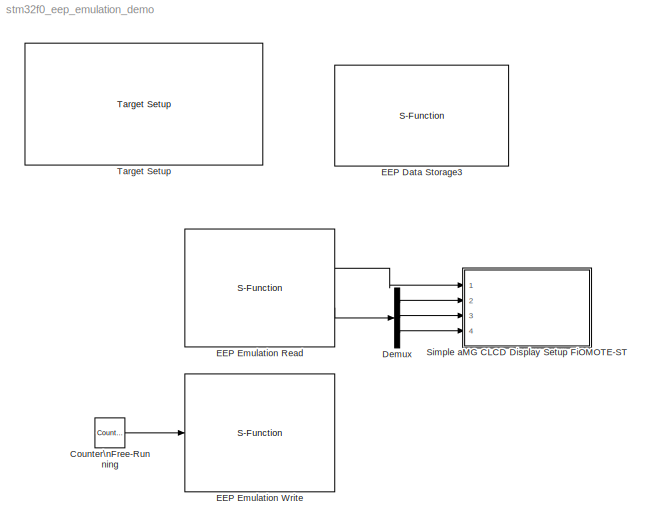
MODEL stm32f0_eep_emulation_demo
KIND model
CONFIG PreLoadFcn = waijung.modelPreload; % Required for working with Waijung Blockset. Do not remove.
BLOCK [Reference] Counter\nFree-Running  REF=simulink/Sources/Counter\nFree-Running
  FunctionWithSeparateData = off
  NumBits = 16
  Ports = [0, 1]
  RTWMemSecDataConstants = Inherit from model
  RTWMemSecDataInternal = Inherit from model
  RTWMemSecDataParameters = Inherit from model
  RTWMemSecFuncExecute = Inherit from model
  RTWMemSecFuncInitTerm = Inherit from model
  ShowPortLabels = FromPortIcon
  SourceBlock = simulink/Sources/Counter\nFree-Running
  SourceType = Counter Free-Running
  SystemSampleTime = -1
  tsamp = -1
BLOCK [Demux] Demux
  DisplayOption = bar
  Outputs = 3
  Ports = [1, 3]
BLOCK [S-Function] EEP Data Storage3
  EnableBusSupport = off
  FunctionName = stm32f0_eep_emulation
  MaskCallbackString = stm32f0_eep_emulation_callback('conf');||stm32f0_eep_emulation_callback('storagedefinename');||stm32f0_eep_emulation_callback('varname');|||stm32f0_eep_emulation_callback('eepfilename');||stm32f0_eep_emulation_callback('sampletime');|stm32f0_eep_emulation_callback('enablecustomportlabel');|stm32f0_eep_emulation_callback('conf');|stm32f0_eep_emulation_callback('conf');||stm32f0_eep_emulation_callba...<+22ch>
  MaskDisplay = text(0.5, 0.5, '[EEP Setup]\\nName: s\\nType: uint8','ver','middle','hor','center');
  MaskEnableString = on,on,on,on,on,on,on,on,on,on,on,on,on,on,off,on,on,on,on,on,on,on,on
  MaskHelp = web(fullfile(waijungdocroot,'stm32f0_eep_emulation.htm'), '-browser')
  MaskIconFrame = on
  MaskIconOpaque = on
  MaskIconRotate = none
  MaskIconUnits = normalized
  MaskInitialization = stm32f0_eep_emulation_callback('init');
  MaskPortRotate = default
  MaskPromptString = Configuration|Storage type|Storage name|Storage name|Var name (hidden)|Initial value|Storage name index (hidden)|EEP file name (hidden)|EEP Information (hidden), [name, initialvalue, datatype]|Sample time (sec)|Enable custom port labels (Ex. In1, In2, In3)|Custom input port labels (Ex. In1, In2, In3)|Custom output port labels (Ex. Out1, Out2, Out3)|Port Pin String|Block ID|Input Port Type|Input Po...<+148ch>
  MaskSelfModifiable = on
  MaskStyleString = popup(Setup|Read|Write),popup(double|single|int8|uint8|int16|uint16|int32|uint32),edit,popup(<empty>),edit,edit,edit,edit,edit,edit,checkbox,edit,edit,edit,edit,edit,edit,edit,edit,edit,edit,edit,edit
  MaskTabNameString = ,,,,,,,,,,,,,,,,,,,,,,
  MaskToolTipString = on,on,on,on,on,on,on,on,on,on,on,on,on,on,on,on,on,on,on,on,on,on,on
  MaskTunableValueString = off,off,off,off,off,off,off,off,off,off,off,off,off,off,off,off,off,off,off,off,off,off,off
  MaskType = stm32f0_eep_emulation
  MaskValueString = Setup|uint8|'s'|<empty>|'<empty>'|8|-1|'stm32f0_eep_emulation_demo.eeprom'|''|inf|off|0||0|EEPDataStorage3|[]|[]|{}|[]|[]|{}|0|[]
  MaskVarAliasString = ,,,,,,,,,,,,,,,,,,,,,,
  MaskVariables = conf=&1;datatype=&2;storagedefinename=@3;storagename=&4;varname=@5;initialvalue=@6;storageindex=@7;eepfilename=@8;eepinfo=@9;sampletime=@10;enablecustomportlabel=@11;cinputportlabel=&12;coutputportlabel=&13;portpinstr=&14;blockid=&15;inputporttype=@16;inputportwidth=@17;inputportlabel=&18;outputporttype=@19;outputportwidth=@20;outputportlabel=&21;compat=&22;optionstring=&23;
  MaskVisibilityString = off,on,on,off,off,on,off,off,off,on,off,off,off,off,off,off,off,off,off,off,off,off,off
  Parameters = conf,inputporttype,inputportwidth,outputporttype,outputportwidth,eepfilename,eepinfo,varname,optionstring,sampletime,blockid
  Ports = []
BLOCK [S-Function] EEP Emulation Read
  EnableBusSupport = off
  FunctionName = stm32f0_eep_emulation
  MaskCallbackString = stm32f0_eep_emulation_callback('conf');||stm32f0_eep_emulation_callback('storagedefinename');||stm32f0_eep_emulation_callback('varname');|||stm32f0_eep_emulation_callback('eepfilename');||stm32f0_eep_emulation_callback('debuginfo');|stm32f0_eep_emulation_callback('sampletime');|stm32f0_eep_emulation_callback('enablecustomportlabel');|stm32f0_eep_emulation_callback('conf');|stm32f0_eep_emulation_ca...<+67ch>
  MaskDescription = Read a value from EEProm Emulation of the specified variable anme.
  MaskDisplay = text(0.5, 0.5, '[EEP Read]\\nName: s\\nTs (sec): 0.01','ver','middle','hor','center'); port_label('output', 1,'s'); port_label('output', 2,'Debug');
  MaskEnableString = on,on,on,on,on,on,on,on,on,on,on,on,on,on,on,off,on,on,on,on,on,on,on,on
  MaskHelp = web(fullfile(waijungdocroot,'stm32f0_eep_emulation.htm'), '-browser')
  MaskIconFrame = on
  MaskIconOpaque = on
  MaskIconRotate = none
  MaskIconUnits = normalized
  MaskInitialization = stm32f0_eep_emulation_callback('init');
  MaskPortRotate = default
  MaskPromptString = Configuration|Storage type|Storage name|Storage name|Var name (hidden)|Initial value|Storage name index (hidden)|EEP file name (hidden)|EEP Information (hidden), [name, initialvalue, datatype]|Debug information|Sample time (sec)|Enable custom port labels (Ex. In1, In2, In3)|Custom input port labels (Ex. In1, In2, In3)|Custom output port labels (Ex. Out1, Out2, Out3)|Port Pin String|Block ID|Input ...<+166ch>
  MaskSelfModifiable = on
  MaskStyleString = popup(Setup|Read|Write),popup(double|single|int8|uint8|int16|uint16|int32|uint32),edit,popup(s),edit,edit,edit,edit,edit,checkbox,edit,checkbox,edit,edit,edit,edit,edit,edit,edit,edit,edit,edit,edit,edit
  MaskTabNameString = ,,,,,,,,,,,,,,,,,,,,,,,
  MaskToolTipString = on,on,on,on,on,on,on,on,on,on,on,on,on,on,on,on,on,on,on,on,on,on,on,on
  MaskTunableValueString = off,off,off,off,off,off,off,off,off,off,off,off,off,off,off,off,off,off,off,off,off,off,off,off
  MaskType = stm32f0_eep_emulation
  MaskValueString = Read|single|'Data1,Data2'|s|'s'|[1.0 2.0]|0|'stm32f0_eep_emulation_demo.eeprom'|'s,3,8,-'|on|inf|off|0||0|EEPEmulationRead|[]|[]|{}|[3 6]|[1 3]|{'s','Debug'}|0|[\"s\",\"0\",\"3\",\"on\",\"\",\"\",\"\",\"\",\"\",\"\",\"2\",\"s\",\"3\",\"8\",\"dummy\",\"0\",\"0\"]
  MaskVarAliasString = ,,,,,,,,,,,,,,,,,,,,,,,
  MaskVariables = conf=&1;datatype=&2;storagedefinename=@3;storagename=&4;varname=@5;initialvalue=@6;storageindex=@7;eepfilename=@8;eepinfo=@9;debuginfo=&10;sampletime=@11;enablecustomportlabel=@12;cinputportlabel=&13;coutputportlabel=&14;portpinstr=&15;blockid=&16;inputporttype=@17;inputportwidth=@18;inputportlabel=&19;outputporttype=@20;outputportwidth=@21;outputportlabel=&22;compat=&23;optionstring=&24;
  MaskVisibilityString = off,off,off,on,off,off,off,off,off,on,on,off,off,off,off,off,off,off,off,off,off,off,off,off
  Parameters = conf,inputporttype,inputportwidth,outputporttype,outputportwidth,eepfilename,eepinfo,varname,optionstring,sampletime,blockid
  Ports = [0, 2]
BLOCK [S-Function] EEP Emulation Write
  EnableBusSupport = off
  FunctionName = stm32f0_eep_emulation
  MaskCallbackString = stm32f0_eep_emulation_callback('conf');||stm32f0_eep_emulation_callback('storagedefinename');||stm32f0_eep_emulation_callback('varname');|||stm32f0_eep_emulation_callback('eepfilename');||stm32f0_eep_emulation_callback('debuginfo');|stm32f0_eep_emulation_callback('sampletime');|stm32f0_eep_emulation_callback('enablecustomportlabel');|stm32f0_eep_emulation_callback('conf');|stm32f0_eep_emulation_ca...<+67ch>
  MaskDescription = Write data value to the specified variable name, to store in EEProm Emulation.
  MaskDisplay = text(0.5, 0.5, '[EEP Write]\\nName: s\\nTs (sec): 0.01','ver','middle','hor','center'); port_label('input', 1,'s');
  MaskEnableString = on,on,on,on,on,on,on,on,on,on,on,on,on,on,on,off,on,on,on,on,on,on,on,on
  MaskHelp = web(fullfile(waijungdocroot,'stm32f0_eep_emulation.htm'), '-browser')
  MaskIconFrame = on
  MaskIconOpaque = on
  MaskIconRotate = none
  MaskIconUnits = normalized
  MaskInitialization = stm32f0_eep_emulation_callback('init');
  MaskPortRotate = default
  MaskPromptString = Configuration|Storage type|Storage name|Storage name|Var name (hidden)|Initial value|Storage name index (hidden)|EEP file name (hidden)|EEP Information (hidden), [name, initialvalue, datatype]|Debug information|Sample time (sec)|Enable custom port labels (Ex. In1, In2, In3)|Custom input port labels (Ex. In1, In2, In3)|Custom output port labels (Ex. Out1, Out2, Out3)|Port Pin String|Block ID|Input ...<+166ch>
  MaskSelfModifiable = on
  MaskStyleString = popup(Setup|Read|Write),popup(double|single|int8|uint8|int16|uint16|int32|uint32),edit,popup(s),edit,edit,edit,edit,edit,checkbox,edit,checkbox,edit,edit,edit,edit,edit,edit,edit,edit,edit,edit,edit,edit
  MaskTabNameString = ,,,,,,,,,,,,,,,,,,,,,,,
  MaskToolTipString = on,on,on,on,on,on,on,on,on,on,on,on,on,on,on,on,on,on,on,on,on,on,on,on
  MaskTunableValueString = off,off,off,off,off,off,off,off,off,off,off,off,off,off,off,off,off,off,off,off,off,off,off,off
  MaskType = stm32f0_eep_emulation
  MaskValueString = Write|single|'Data1,Data2'|s|'s'|[1.0 2.0]|0|'stm32f0_eep_emulation_demo.eeprom'|'s,3,8,-'|off|inf|off|0||0|EEPEmulationWrite|[-1]|[]|{'s'}|[]|[]|{}|0|[\"s\",\"0\",\"3\",\"off\",\"\",\"\",\"\",\"\",\"\",\"\",\"2\",\"s\",\"3\",\"8\",\"dummy\",\"0\",\"0\"]
  MaskVarAliasString = ,,,,,,,,,,,,,,,,,,,,,,,
  MaskVariables = conf=&1;datatype=&2;storagedefinename=@3;storagename=&4;varname=@5;initialvalue=@6;storageindex=@7;eepfilename=@8;eepinfo=@9;debuginfo=&10;sampletime=@11;enablecustomportlabel=@12;cinputportlabel=&13;coutputportlabel=&14;portpinstr=&15;blockid=&16;inputporttype=@17;inputportwidth=@18;inputportlabel=&19;outputporttype=@20;outputportwidth=@21;outputportlabel=&22;compat=&23;optionstring=&24;
  MaskVisibilityString = off,off,off,on,off,off,off,off,off,on,on,off,off,off,off,off,off,off,off,off,off,off,off,off
  Parameters = conf,inputporttype,inputportwidth,outputporttype,outputportwidth,eepfilename,eepinfo,varname,optionstring,sampletime,blockid
  Ports = [1]
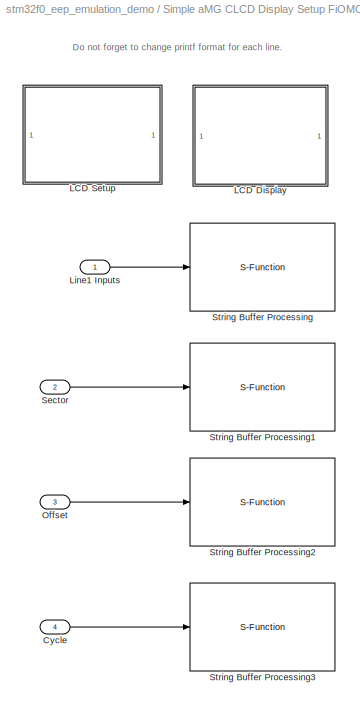
BLOCK [SubSystem] Simple aMG CLCD Display Setup FiOMOTE-ST
  CopyFcn = set_param(gcbh, 'LinkStatus', 'none')
  FunctionWithSeparateData = off
  MaskHideContents = off
  MinAlgLoopOccurrences = off
  Opaque = off
  Ports = [4]
  PropExecContextOutsideSubsystem = off
  RTWSystemCode = Auto
  RequestExecContextInheritance = off
BLOCK [Inport] Simple aMG CLCD Display Setup FiOMOTE-ST/Cycle
  IconDisplay = Port number
  OutDataType = fixdt(1, 16)
  OutScaling = 2^0
  Port = 4
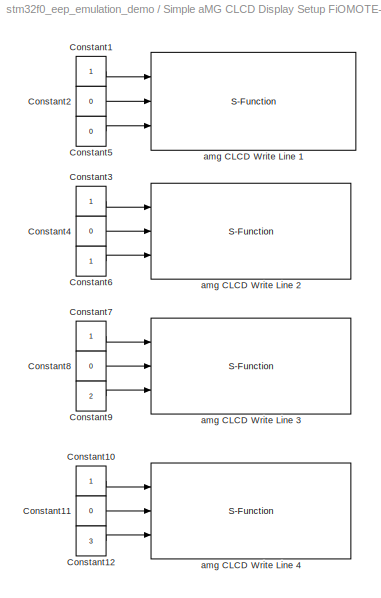
BLOCK [SubSystem] Simple aMG CLCD Display Setup FiOMOTE-ST/LCD Display
  FunctionWithSeparateData = off
  MaskHideContents = off
  MinAlgLoopOccurrences = off
  Opaque = off
  Ports = []
  PropExecContextOutsideSubsystem = off
  RTWSystemCode = Auto
  RequestExecContextInheritance = off
BLOCK [Constant] Simple aMG CLCD Display Setup FiOMOTE-ST/LCD Display/Constant1
  OutDataType = fixdt(1, 16)
  OutDataTypeMode = uint8
  OutDataTypeStr = uint8
  OutScaling = 2^0
BLOCK [Constant] Simple aMG CLCD Display Setup FiOMOTE-ST/LCD Display/Constant10
  OutDataType = fixdt(1, 16)
  OutDataTypeMode = uint8
  OutDataTypeStr = uint8
  OutScaling = 2^0
BLOCK [Constant] Simple aMG CLCD Display Setup FiOMOTE-ST/LCD Display/Constant11
  OutDataType = fixdt(1, 16)
  OutDataTypeMode = uint8
  OutDataTypeStr = uint8
  OutScaling = 2^0
  Value = 0
BLOCK [Constant] Simple aMG CLCD Display Setup FiOMOTE-ST/LCD Display/Constant12
  OutDataType = fixdt(1, 16)
  OutDataTypeMode = uint8
  OutDataTypeStr = uint8
  OutScaling = 2^0
  Value = 3
BLOCK [Constant] Simple aMG CLCD Display Setup FiOMOTE-ST/LCD Display/Constant2
  OutDataType = fixdt(1, 16)
  OutDataTypeMode = uint8
  OutDataTypeStr = uint8
  OutScaling = 2^0
  Value = 0
BLOCK [Constant] Simple aMG CLCD Display Setup FiOMOTE-ST/LCD Display/Constant3
  OutDataType = fixdt(1, 16)
  OutDataTypeMode = uint8
  OutDataTypeStr = uint8
  OutScaling = 2^0
BLOCK [Constant] Simple aMG CLCD Display Setup FiOMOTE-ST/LCD Display/Constant4
  OutDataType = fixdt(1, 16)
  OutDataTypeMode = uint8
  OutDataTypeStr = uint8
  OutScaling = 2^0
  Value = 0
BLOCK [Constant] Simple aMG CLCD Display Setup FiOMOTE-ST/LCD Display/Constant5
  OutDataType = fixdt(1, 16)
  OutDataTypeMode = uint8
  OutDataTypeStr = uint8
  OutScaling = 2^0
  Value = 0
BLOCK [Constant] Simple aMG CLCD Display Setup FiOMOTE-ST/LCD Display/Constant6
  OutDataType = fixdt(1, 16)
  OutDataTypeMode = uint8
  OutDataTypeStr = uint8
  OutScaling = 2^0
BLOCK [Constant] Simple aMG CLCD Display Setup FiOMOTE-ST/LCD Display/Constant7
  OutDataType = fixdt(1, 16)
  OutDataTypeMode = uint8
  OutDataTypeStr = uint8
  OutScaling = 2^0
BLOCK [Constant] Simple aMG CLCD Display Setup FiOMOTE-ST/LCD Display/Constant8
  OutDataType = fixdt(1, 16)
  OutDataTypeMode = uint8
  OutDataTypeStr = uint8
  OutScaling = 2^0
  Value = 0
BLOCK [Constant] Simple aMG CLCD Display Setup FiOMOTE-ST/LCD Display/Constant9
  OutDataType = fixdt(1, 16)
  OutDataTypeMode = uint8
  OutDataTypeStr = uint8
  OutScaling = 2^0
  Value = 2
BLOCK [S-Function] Simple aMG CLCD Display Setup FiOMOTE-ST/LCD Display/amg CLCD Write Line 1
  EnableBusSupport = off
  FunctionName = amg_clcd
  MaskCallbackString = amg_clcd_callback('configuration');||||||||||||||||amg_clcd_callback('usestringbuffer');||amg_clcd_callback('varname');|||amg_clcd_callback('confstr');|amg_clcd_callback('sampletime');|amg_clcd_callback('sampletimestr');|amg_clcd_callback('blockid');  <repeated x5 — deduplicated; at blocks: amg CLCD Write Line 1, amg CLCD Write Line 2, amg CLCD Write Line 3, amg CLCD Write Line 4, amg CLCD Setup>
  MaskDescription = Note for cmd:\n1 - Clear LCD Line before write.\n0 or otherwise - Write into LCD Line with existing data.\n
  MaskDisplay = text(0.5, 0.5, 'Module: CLCD1 (Write)\\nBuffer: Line1\\nTs (sec): 0.05','ver','middle','hor','center');port_label('input', 1,'cmd');port_label('input', 2,'xpos');port_label('input', 3,'ypos');
  MaskEnableString = on,on,on,off,off,on,on,on,on,on,on,on,on,on,on,on,on,on,off,off,off,on,on,on,on
  MaskHelp = web(fullfile(waijungdocroot,'amg_clcd_write.htm'), '-browser')
  MaskIconFrame = on
  MaskIconOpaque = on
  MaskIconRotate = none
  MaskIconUnits = normalized
  MaskInitialization = amg_clcd_callback('init');
  MaskPortRotate = default
  MaskPromptString = Configuration:|Module:|LCD model:|Interface:|Number of lines:|Number of columns:|GPIO Pull-Up/Down:|GPIO control port:|GPIO control pin, RS:|GPIO control pin, EN:|GPIO control pin, RW:|GPIO data D[7:4] port|GPIO data pin, D4:|GPIO data pin, D5:|GPIO data pin, D6:|GPIO data pin, D7:|Use string buffer|String buffer|Variable name|Input type array|Output type array|Configuration string|Sample time (se...<+47ch>  <repeated x4 — deduplicated; at blocks: amg CLCD Write Line 1, amg CLCD Write Line 2, amg CLCD Write Line 3, amg CLCD Write Line 4>
  MaskSelfModifiable = on
  MaskStyleString = popup(Setup|Transaction),popup(1|2|3|4),popup(amg CLCD Std),popup(4-bits),edit,edit,popup(Push-pull|Open-drain),popup(A|B|C|D|E|F|G|H|I),popup(0|1|2|3|4|5|6|7|8|9|10|11|12|13|14|15),popup(0|1|2|3|4|5|6|7|8|9|10|11|12|13|14|15),popup(0|1|2|3|4|5|6|7|8|9|10|11|12|13|14|15),popup(A|B|C|D|E|F|G|H|I),popup(0|1|2|3|4|5|6|7|8|9|10|11|12|13|14|15),popup(0|1|2|3|4|5|6|7|8|9|10|11|12|13|14|15),popup(0|1|2|3...<+151ch>  <repeated x5 — deduplicated; at blocks: amg CLCD Write Line 1, amg CLCD Write Line 2, amg CLCD Write Line 3, amg CLCD Write Line 4, amg CLCD Setup>
  MaskTabNameString = ,,,,,,,,,,,,,,,,,,,,,,,,
  MaskToolTipString = on,on,on,on,on,on,on,on,on,on,on,on,on,on,on,on,on,on,on,on,on,on,on,on,on
  MaskTunableValueString = off,off,off,off,off,off,off,off,off,off,off,off,off,off,off,off,off,off,off,off,off,off,off,off,off
  MaskType = amg_clcd
  MaskValueString = Transaction|1|amg CLCD Std|4-bits|4|20|Push-pull|E|15|11|13|A|7|5|3|1|on|Line1|SimpleaMGCLCDDisplaySetupFiOMOTESTLCDSetupVolatileDataStorage_Line1|[3 -1 -1 -1]|[0]|[\"4\",\"4\",\"20\",\"PP\",\"E\",\"15\",\"11\",\"13\",\"\",\"A\",\"\",\"\",\"\",\"\",\"7\",\"5\",\"3\",\"1\",\"1\",\"SimpleaMGCLCDDisplaySetupFiOMOTESTLCDSetupVolatileDataStorage_Line1\",\"1\",\"0\",\"0\",\"0\",\"1\",\"0\",\"0\",\"0\",\...<+89ch>
  MaskVarAliasString = ,,,,,,,,,,,,,,,,,,,,,,,,
  MaskVariables = configuration=&1;module=&2;model=&3;interface=&4;linecount=@5;columncount=@6;gpiotype=&7;controlport=&8;control_rs=&9;control_en=&10;control_rw=&11;dataport=&12;data0=&13;data1=&14;data2=&15;data3=&16;usestringbuffer=@17;stringbuffer=&18;varname=&19;inputtypearray=@20;outputtypearray=@21;confstr=&22;sampletime=@23;sampletimestr=&24;blockid=&25;  <repeated x4 — deduplicated; at blocks: amg CLCD Write Line 1, amg CLCD Write Line 2, amg CLCD Write Line 3, amg CLCD Write Line 4>
  MaskVisibilityString = off,on,off,off,off,off,off,off,off,off,off,off,off,off,off,off,on,on,off,off,off,off,on,off,off
  Parameters = module,configuration,inputtypearray,outputtypearray,confstr,sampletime,sampletimestr,blockid
  Ports = [3]
BLOCK [S-Function] Simple aMG CLCD Display Setup FiOMOTE-ST/LCD Display/amg CLCD Write Line 2
  EnableBusSupport = off
  FunctionName = amg_clcd
  MaskDescription = Note for cmd:\n1 - Clear LCD Line before write.\n0 or otherwise - Write into LCD Line with existing data.\n
  MaskDisplay = text(0.5, 0.5, 'Module: CLCD1 (Write)\\nBuffer: Line2\\nTs (sec): 0.05','ver','middle','hor','center');port_label('input', 1,'cmd');port_label('input', 2,'xpos');port_label('input', 3,'ypos');
  MaskEnableString = on,on,on,off,off,on,on,on,on,on,on,on,on,on,on,on,on,on,off,off,off,on,on,on,on
  MaskHelp = web(fullfile(waijungdocroot,'amg_clcd_write.htm'), '-browser')
  MaskIconFrame = on
  MaskIconOpaque = on
  MaskIconRotate = none
  MaskIconUnits = normalized
  MaskInitialization = amg_clcd_callback('init');
  MaskPortRotate = default
  MaskSelfModifiable = on
  MaskTabNameString = ,,,,,,,,,,,,,,,,,,,,,,,,
  MaskToolTipString = on,on,on,on,on,on,on,on,on,on,on,on,on,on,on,on,on,on,on,on,on,on,on,on,on
  MaskTunableValueString = off,off,off,off,off,off,off,off,off,off,off,off,off,off,off,off,off,off,off,off,off,off,off,off,off
  MaskType = amg_clcd
  MaskValueString = Transaction|1|amg CLCD Std|4-bits|4|20|Push-pull|E|15|11|13|A|7|5|3|1|on|Line2|SimpleaMGCLCDDisplaySetupFiOMOTESTLCDSetupVolatileDataStorage1_Line2|[3 -1 -1 -1]|[0]|[\"4\",\"4\",\"20\",\"PP\",\"E\",\"15\",\"11\",\"13\",\"\",\"A\",\"\",\"\",\"\",\"\",\"7\",\"5\",\"3\",\"1\",\"1\",\"SimpleaMGCLCDDisplaySetupFiOMOTESTLCDSetupVolatileDataStorage1_Line2\",\"1\",\"0\",\"0\",\"0\",\"1\",\"0\",\"0\",\"0\"...<+91ch>
  MaskVarAliasString = ,,,,,,,,,,,,,,,,,,,,,,,,
  MaskVisibilityString = off,on,off,off,off,off,off,off,off,off,off,off,off,off,off,off,on,on,off,off,off,off,on,off,off
  Parameters = module,configuration,inputtypearray,outputtypearray,confstr,sampletime,sampletimestr,blockid
  Ports = [3]
BLOCK [S-Function] Simple aMG CLCD Display Setup FiOMOTE-ST/LCD Display/amg CLCD Write Line 3
  EnableBusSupport = off
  FunctionName = amg_clcd
  MaskDescription = Note for cmd:\n1 - Clear LCD Line before write.\n0 or otherwise - Write into LCD Line with existing data.\n
  MaskDisplay = text(0.5, 0.5, 'Module: CLCD1 (Write)\\nBuffer: Line3\\nTs (sec): 0.05','ver','middle','hor','center');port_label('input', 1,'cmd');port_label('input', 2,'xpos');port_label('input', 3,'ypos');
  MaskEnableString = on,on,on,off,off,on,on,on,on,on,on,on,on,on,on,on,on,on,off,off,off,on,on,on,on
  MaskHelp = web(fullfile(waijungdocroot,'amg_clcd_write.htm'), '-browser')
  MaskIconFrame = on
  MaskIconOpaque = on
  MaskIconRotate = none
  MaskIconUnits = normalized
  MaskInitialization = amg_clcd_callback('init');
  MaskPortRotate = default
  MaskSelfModifiable = on
  MaskTabNameString = ,,,,,,,,,,,,,,,,,,,,,,,,
  MaskToolTipString = on,on,on,on,on,on,on,on,on,on,on,on,on,on,on,on,on,on,on,on,on,on,on,on,on
  MaskTunableValueString = off,off,off,off,off,off,off,off,off,off,off,off,off,off,off,off,off,off,off,off,off,off,off,off,off
  MaskType = amg_clcd
  MaskValueString = Transaction|1|amg CLCD Std|4-bits|4|20|Push-pull|E|15|11|13|A|7|5|3|1|on|Line3|SimpleaMGCLCDDisplaySetupFiOMOTESTLCDSetupVolatileDataStorage2_Line3|[3 -1 -1 -1]|[0]|[\"4\",\"4\",\"20\",\"PP\",\"E\",\"15\",\"11\",\"13\",\"\",\"A\",\"\",\"\",\"\",\"\",\"7\",\"5\",\"3\",\"1\",\"1\",\"SimpleaMGCLCDDisplaySetupFiOMOTESTLCDSetupVolatileDataStorage2_Line3\",\"1\",\"0\",\"0\",\"0\",\"1\",\"0\",\"0\",\"0\"...<+91ch>
  MaskVarAliasString = ,,,,,,,,,,,,,,,,,,,,,,,,
  MaskVisibilityString = off,on,off,off,off,off,off,off,off,off,off,off,off,off,off,off,on,on,off,off,off,off,on,off,off
  Parameters = module,configuration,inputtypearray,outputtypearray,confstr,sampletime,sampletimestr,blockid
  Ports = [3]
BLOCK [S-Function] Simple aMG CLCD Display Setup FiOMOTE-ST/LCD Display/amg CLCD Write Line 4
  EnableBusSupport = off
  FunctionName = amg_clcd
  MaskDescription = Note for cmd:\n1 - Clear LCD Line before write.\n0 or otherwise - Write into LCD Line with existing data.\n
  MaskDisplay = text(0.5, 0.5, 'Module: CLCD1 (Write)\\nBuffer: Line4\\nTs (sec): 0.05','ver','middle','hor','center');port_label('input', 1,'cmd');port_label('input', 2,'xpos');port_label('input', 3,'ypos');
  MaskEnableString = on,on,on,off,off,on,on,on,on,on,on,on,on,on,on,on,on,on,off,off,off,on,on,on,on
  MaskHelp = web(fullfile(waijungdocroot,'amg_clcd_write.htm'), '-browser')
  MaskIconFrame = on
  MaskIconOpaque = on
  MaskIconRotate = none
  MaskIconUnits = normalized
  MaskInitialization = amg_clcd_callback('init');
  MaskPortRotate = default
  MaskSelfModifiable = on
  MaskTabNameString = ,,,,,,,,,,,,,,,,,,,,,,,,
  MaskToolTipString = on,on,on,on,on,on,on,on,on,on,on,on,on,on,on,on,on,on,on,on,on,on,on,on,on
  MaskTunableValueString = off,off,off,off,off,off,off,off,off,off,off,off,off,off,off,off,off,off,off,off,off,off,off,off,off
  MaskType = amg_clcd
  MaskValueString = Transaction|1|amg CLCD Std|4-bits|4|20|Push-pull|E|15|11|13|A|7|5|3|1|on|Line4|SimpleaMGCLCDDisplaySetupFiOMOTESTLCDSetupVolatileDataStorage3_Line4|[3 -1 -1 -1]|[0]|[\"4\",\"4\",\"20\",\"PP\",\"E\",\"15\",\"11\",\"13\",\"\",\"A\",\"\",\"\",\"\",\"\",\"7\",\"5\",\"3\",\"1\",\"1\",\"SimpleaMGCLCDDisplaySetupFiOMOTESTLCDSetupVolatileDataStorage3_Line4\",\"1\",\"0\",\"0\",\"0\",\"1\",\"0\",\"0\",\"0\"...<+91ch>
  MaskVarAliasString = ,,,,,,,,,,,,,,,,,,,,,,,,
  MaskVisibilityString = off,on,off,off,off,off,off,off,off,off,off,off,off,off,off,off,on,on,off,off,off,off,on,off,off
  Parameters = module,configuration,inputtypearray,outputtypearray,confstr,sampletime,sampletimestr,blockid
  Ports = [3]
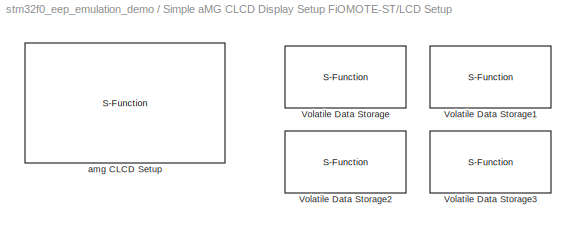
BLOCK [SubSystem] Simple aMG CLCD Display Setup FiOMOTE-ST/LCD Setup
  FunctionWithSeparateData = off
  MaskHideContents = off
  MinAlgLoopOccurrences = off
  Opaque = off
  Ports = []
  PropExecContextOutsideSubsystem = off
  RTWSystemCode = Auto
  RequestExecContextInheritance = off
BLOCK [S-Function] Simple aMG CLCD Display Setup FiOMOTE-ST/LCD Setup/Volatile Data Storage
  EnableBusSupport = off
  FunctionName = waijung_vdata_storage
  MaskCallbackString = waijung_vdata_storage_callback('storagetype');|waijung_vdata_storage_callback('storagename');|waijung_vdata_storage_callback('initval');|waijung_vdata_storage_callback('varname');||waijung_vdata_storage_callback('initvalstring');|waijung_vdata_storage_callback('webintegration');|waijung_vdata_storage_callback('weboutputformat');|||waijung_vdata_storage_callback('sampletime');|waijung_vdata_storage...<+71ch>  <repeated x4 — deduplicated; at blocks: Volatile Data Storage, Volatile Data Storage1, Volatile Data Storage2, Volatile Data Storage3>
  MaskDescription = This block implements a volatile Data Storage.\n\nWeb CGI varset/varget integratiopn:\nEnable - In webserver application, allow remote access via http.\nDisable - Variable is use in local only.  <repeated x4 — deduplicated; at blocks: Volatile Data Storage, Volatile Data Storage1, Volatile Data Storage2, Volatile Data Storage3>
  MaskDisplay = text(0.5, 0.5, 'Name: Line1\\nType: string','ver','middle','hor','center')
  MaskEnableString = on,on,on,off,on,on,on,on,off,on,on,off,off,on
  MaskHelp = web(fullfile(waijungdocroot,'Volatile_Data_Storage.htm'))
  MaskIconFrame = on
  MaskIconOpaque = on
  MaskIconRotate = none
  MaskIconUnits = normalized
  MaskInitialization = waijung_vdata_storage_callback('init');
  MaskPortRotate = default
  MaskPromptString = Storage Type|Storage Name (must be a valid variable name)|Initial value (Apply at Power on Reset only)|Variable name|Size (bytes)|Initial value (Apply at Power on Reset only)|Web CGI varget/varset integration|Web CGI varget output format|Web CGI varset callback|Last selected Storage Type|Sample time (sec)|Compiled sample time (sec) in string|BlockID|Type string  <repeated x4 — deduplicated; at blocks: Volatile Data Storage, Volatile Data Storage1, Volatile Data Storage2, Volatile Data Storage3>
  MaskSelfModifiable = on
  MaskStyleString = popup(double|single|uint32|int32|uint16|int16|uint8|int8|string),edit,edit,edit,edit,edit,popup(Disable|ReadOnly|Write/ Read|ReadOnly with KeyValuePair|Write/ Read with KeyValuePair),edit,edit,popup(double|single|uint32|int32|uint16|int16|uint8|int8|string),edit,edit,edit,edit  <repeated x4 — deduplicated; at blocks: Volatile Data Storage, Volatile Data Storage1, Volatile Data Storage2, Volatile Data Storage3>
  MaskTabNameString = ,,,,,,,,,,,,,
  MaskToolTipString = on,on,on,on,on,on,on,on,on,on,on,on,on,on
  MaskTunableValueString = off,off,off,off,off,off,off,off,off,off,off,off,off,off
  MaskType = waijung_vdata_storage
  MaskValueString = string|Line1|0|SimpleaMGCLCDDisplaySetupFiOMOTESTLCDSetupVolatileDataStorage_Line1|64|''|Disable|'%s'|(void*)0|string|-1|0.01|SimpleaMGCLCDDisplaySetupFiOMOTESTLCDSetupVolatileDataStorage|char
  MaskVarAliasString = ,,,,,,,,,,,,,
  MaskVariables = storagetype=&1;storagename=&2;initval=@3;varname=&4;buffersize=@5;initvalstring=@6;webintegration=&7;weboutputformat=&8;webcgicallback=&9;laststoragetype=&10;sampletime=@11;sampletimestr=&12;blockid=&13;storagetypestr=&14;  <repeated x4 — deduplicated; at blocks: Volatile Data Storage, Volatile Data Storage1, Volatile Data Storage2, Volatile Data Storage3>
  MaskVisibilityString = on,on,off,off,on,on,on,off,off,off,on,off,off,off
  Parameters = storagetype,storagename,initval,varname,buffersize,initvalstring,sampletime,sampletimestr,blockid,storagetypestr
  Ports = []
BLOCK [S-Function] Simple aMG CLCD Display Setup FiOMOTE-ST/LCD Setup/Volatile Data Storage1
  EnableBusSupport = off
  FunctionName = waijung_vdata_storage
  MaskDisplay = text(0.5, 0.5, 'Name: Line2\\nType: string','ver','middle','hor','center')
  MaskEnableString = on,on,on,off,on,on,on,on,off,on,on,off,off,on
  MaskHelp = web(fullfile(waijungdocroot,'Volatile_Data_Storage.htm'))
  MaskIconFrame = on
  MaskIconOpaque = on
  MaskIconRotate = none
  MaskIconUnits = normalized
  MaskInitialization = waijung_vdata_storage_callback('init');
  MaskPortRotate = default
  MaskSelfModifiable = on
  MaskTabNameString = ,,,,,,,,,,,,,
  MaskToolTipString = on,on,on,on,on,on,on,on,on,on,on,on,on,on
  MaskTunableValueString = off,off,off,off,off,off,off,off,off,off,off,off,off,off
  MaskType = waijung_vdata_storage
  MaskValueString = string|Line2|0|SimpleaMGCLCDDisplaySetupFiOMOTESTLCDSetupVolatileDataStorage1_Line2|64|''|Disable|'%s'|(void*)0|string|-1|0.01|SimpleaMGCLCDDisplaySetupFiOMOTESTLCDSetupVolatileDataStorage1|char
  MaskVarAliasString = ,,,,,,,,,,,,,
  MaskVisibilityString = on,on,off,off,on,on,on,off,off,off,on,off,off,off
  Parameters = storagetype,storagename,initval,varname,buffersize,initvalstring,sampletime,sampletimestr,blockid,storagetypestr
  Ports = []
BLOCK [S-Function] Simple aMG CLCD Display Setup FiOMOTE-ST/LCD Setup/Volatile Data Storage2
  EnableBusSupport = off
  FunctionName = waijung_vdata_storage
  MaskDisplay = text(0.5, 0.5, 'Name: Line3\\nType: string','ver','middle','hor','center')
  MaskEnableString = on,on,on,off,on,on,on,on,off,on,on,off,off,on
  MaskHelp = web(fullfile(waijungdocroot,'Volatile_Data_Storage.htm'))
  MaskIconFrame = on
  MaskIconOpaque = on
  MaskIconRotate = none
  MaskIconUnits = normalized
  MaskInitialization = waijung_vdata_storage_callback('init');
  MaskPortRotate = default
  MaskSelfModifiable = on
  MaskTabNameString = ,,,,,,,,,,,,,
  MaskToolTipString = on,on,on,on,on,on,on,on,on,on,on,on,on,on
  MaskTunableValueString = off,off,off,off,off,off,off,off,off,off,off,off,off,off
  MaskType = waijung_vdata_storage
  MaskValueString = string|Line3|0|SimpleaMGCLCDDisplaySetupFiOMOTESTLCDSetupVolatileDataStorage2_Line3|64|''|Disable|'%s'|(void*)0|string|-1|0.01|SimpleaMGCLCDDisplaySetupFiOMOTESTLCDSetupVolatileDataStorage2|char
  MaskVarAliasString = ,,,,,,,,,,,,,
  MaskVisibilityString = on,on,off,off,on,on,on,off,off,off,on,off,off,off
  Parameters = storagetype,storagename,initval,varname,buffersize,initvalstring,sampletime,sampletimestr,blockid,storagetypestr
  Ports = []
BLOCK [S-Function] Simple aMG CLCD Display Setup FiOMOTE-ST/LCD Setup/Volatile Data Storage3
  EnableBusSupport = off
  FunctionName = waijung_vdata_storage
  MaskDisplay = text(0.5, 0.5, 'Name: Line4\\nType: string','ver','middle','hor','center')
  MaskEnableString = on,on,on,off,on,on,on,on,off,on,on,off,off,on
  MaskHelp = web(fullfile(waijungdocroot,'Volatile_Data_Storage.htm'))
  MaskIconFrame = on
  MaskIconOpaque = on
  MaskIconRotate = none
  MaskIconUnits = normalized
  MaskInitialization = waijung_vdata_storage_callback('init');
  MaskPortRotate = default
  MaskSelfModifiable = on
  MaskTabNameString = ,,,,,,,,,,,,,
  MaskToolTipString = on,on,on,on,on,on,on,on,on,on,on,on,on,on
  MaskTunableValueString = off,off,off,off,off,off,off,off,off,off,off,off,off,off
  MaskType = waijung_vdata_storage
  MaskValueString = string|Line4|0|SimpleaMGCLCDDisplaySetupFiOMOTESTLCDSetupVolatileDataStorage3_Line4|64|''|Disable|'%s'|(void*)0|string|-1|0.01|SimpleaMGCLCDDisplaySetupFiOMOTESTLCDSetupVolatileDataStorage3|char
  MaskVarAliasString = ,,,,,,,,,,,,,
  MaskVisibilityString = on,on,off,off,on,on,on,off,off,off,on,off,off,off
  Parameters = storagetype,storagename,initval,varname,buffersize,initvalstring,sampletime,sampletimestr,blockid,storagetypestr
  Ports = []
BLOCK [S-Function] Simple aMG CLCD Display Setup FiOMOTE-ST/LCD Setup/amg CLCD Setup
  EnableBusSupport = off
  FunctionName = amg_clcd
  MaskDisplay = text(0.5, 0.5, 'Module: CLCD1 (Setup)\\nInterface: 4-bits\\nCntrl: B2/B10/B11\\nD[7:4]: B12/B13/B14/B15\\nTs (sec): 0.01','ver','middle','hor','center');
  MaskEnableString = on,on,on,off,off,on,on,on,on,on,on,on,on,on,on,on,on,on,off,off,off,on,on,on,on
  MaskHelp = web(fullfile(waijungdocroot,'amg_clcd_setup.htm'), '-browser')
  MaskIconFrame = on
  MaskIconOpaque = on
  MaskIconRotate = none
  MaskIconUnits = normalized
  MaskInitialization = amg_clcd_callback('init');
  MaskPortRotate = default
  MaskPromptString = Configuration:|Module:|LCD model:|Interface:|Number of lines:|Number of columns:|GPIO Pull-Up/Down:|GPIO control port:|GPIO control pin, RS:|GPIO control pin, RW:|GPIO control pin, EN:|GPIO data D[7:4] port|GPIO data pin, D4:|GPIO data pin, D5:|GPIO data pin, D6:|GPIO data pin, D7:|Use string buffer|String buffer|Variable name|Input type array|Output type array|Configuration string|Sample time (se...<+47ch>
  MaskSelfModifiable = on
  MaskTabNameString = ,,,,,,,,,,,,,,,,,,,,,,,,
  MaskToolTipString = on,on,on,on,on,on,on,on,on,on,on,on,on,on,on,on,on,on,on,on,on,on,on,on,on
  MaskTunableValueString = off,off,off,off,off,off,off,off,off,off,off,off,off,off,off,off,off,off,off,off,off,off,off,off,off
  MaskType = amg_clcd
  MaskValueString = Setup|1|amg CLCD Std|4-bits|4|16|Push-pull|B|2|10|11|B|12|13|14|15|off|Line2|clcd_demo_4linesLCDSetupVolatileDataStorage3_Line2|[0]|[0]|[\"4\",\"4\",\"16\",\"PP\",\"B\",\"2\",\"11\",\"10\",\"\",\"B\",\"\",\"\",\"\",\"\",\"12\",\"13\",\"14\",\"15\",\"0\",\"\",\"0\",\"1\",\"0\",\"0\",\"0\",\"0\",\"0\",\"0\",\"0\",\"stm32f0\"]|-1|0.01|SimpleaMGCLCDDisplaySetupFiOMOTESTLCDSetupamgCLCDSetup
  MaskVarAliasString = ,,,,,,,,,,,,,,,,,,,,,,,,
  MaskVariables = configuration=&1;module=&2;model=&3;interface=&4;linecount=@5;columncount=@6;gpiotype=&7;controlport=&8;control_rs=&9;control_rw=&10;control_en=&11;dataport=&12;data0=&13;data1=&14;data2=&15;data3=&16;usestringbuffer=@17;stringbuffer=&18;varname=&19;inputtypearray=@20;outputtypearray=@21;confstr=&22;sampletime=@23;sampletimestr=&24;blockid=&25;
  MaskVisibilityString = off,on,off,on,off,on,on,on,on,on,on,on,on,on,on,on,off,off,off,off,off,off,off,off,off
  Parameters = module,configuration,inputtypearray,outputtypearray,confstr,sampletime,sampletimestr,blockid
  Ports = []
BLOCK [Inport] Simple aMG CLCD Display Setup FiOMOTE-ST/Line1 Inputs
  IconDisplay = Port number
  OutDataType = fixdt(1, 16)
  OutScaling = 2^0
BLOCK [Inport] Simple aMG CLCD Display Setup FiOMOTE-ST/Offset
  IconDisplay = Port number
  OutDataType = fixdt(1, 16)
  OutScaling = 2^0
  Port = 3
BLOCK [Inport] Simple aMG CLCD Display Setup FiOMOTE-ST/Sector
  IconDisplay = Port number
  OutDataType = fixdt(1, 16)
  OutScaling = 2^0
  Port = 2
BLOCK [S-Function] Simple aMG CLCD Display Setup FiOMOTE-ST/String Buffer Processing
  EnableBusSupport = off
  FunctionName = waijung_stringbuffer_processing
  MaskCallbackString = waijung_stringbuffer_processing_callback('configuration');||waijung_stringbuffer_processing_callback('sformat');|waijung_stringbuffer_processing_callback('enableoutput');||||||waijung_stringbuffer_processing_callback('sampletime');|waijung_stringbuffer_processing_callback('sampletimestr');|waijung_stringbuffer_processing_callback('blockid');  <repeated x4 — deduplicated; at blocks: String Buffer Processing, String Buffer Processing1, String Buffer Processing2, String Buffer Processing3>
  MaskDescription = This block implements string processing, sprintf/ sscanf command.\nSupported format:\n%u, %i, %o, %x: uint32\n%d: int32\n%e, %g, %f: single\n%c: int8\n\nStatus:\n 0: Failed.\n Non-zero: Success.  <repeated x4 — deduplicated; at blocks: String Buffer Processing, String Buffer Processing1, String Buffer Processing2, String Buffer Processing3>
  MaskDisplay = text(0.5, 0.5, '[ sprintf ]\\nBuffer: Line1\\nTs (sec): 0.01','ver','middle','hor','center');port_label('input', 1,'%u');
  MaskEnableString = on,on,on,on,off,on,on,on,on,on,off,off
  MaskHelp = web(fullfile(waijungdocroot,'String_Buffer_Processing.htm'))
  MaskIconFrame = on
  MaskIconOpaque = on
  MaskIconRotate = none
  MaskIconUnits = normalized
  MaskInitialization = waijung_stringbuffer_processing_callback('init');
  MaskPortRotate = default
  MaskPromptString = Function|String buffer|Printf format|Enable output status|Variable name|Input type array|Output type array|Port type list|Port type count|Sample time (sec)|Compiled sample time (sec) in string|BlockID  <repeated x4 — deduplicated; at blocks: String Buffer Processing, String Buffer Processing1, String Buffer Processing2, String Buffer Processing3>
  MaskSelfModifiable = on
  MaskStyleString = popup(sprintf|sscanf),popup(Line1|Line2|Line3|Line4|<output>),edit,checkbox,edit,edit,edit,edit,edit,edit,edit,edit
  MaskTabNameString = ,,,,,,,,,,,
  MaskToolTipString = on,on,on,on,on,on,on,on,on,on,on,on
  MaskTunableValueString = on,off,off,off,off,off,off,off,off,off,off,off
  MaskType = waijung_stringbuffer_processing
  MaskValueString = sprintf|Line1|'%u'|off|SimpleaMGCLCDDisplaySetupFiOMOTESTLCDSetupVolatileDataStorage_Line1|[1 -1]|[0]|[\"uint32_t\"]|1|-1|0.01|SimpleaMGCLCDDisplaySetupFiOMOTESTStringBufferProcessing
  MaskVarAliasString = ,,,,,,,,,,,
  MaskVariables = configuration=&1;storagename=&2;sformat=@3;enableoutput=&4;varname=&5;inputtypearray=@6;outputtypearray=@7;porttypes=&8;portcount=@9;sampletime=@10;sampletimestr=&11;blockid=&12;
  MaskVisibilityString = on,on,on,on,off,off,off,off,off,on,off,off
  Parameters = configuration,varname,sformat,porttypes,portcount,inputtypearray,outputtypearray,sampletime,sampletimestr,blockid
  Ports = [1]
BLOCK [S-Function] Simple aMG CLCD Display Setup FiOMOTE-ST/String Buffer Processing1
  EnableBusSupport = off
  FunctionName = waijung_stringbuffer_processing
  MaskDisplay = text(0.5, 0.5, '[ sprintf ]\\nBuffer: Line2\\nTs (sec): 0.01','ver','middle','hor','center');port_label('input', 1,'%d');
  MaskEnableString = on,on,on,on,off,on,on,on,on,on,off,off
  MaskHelp = web(fullfile(waijungdocroot,'String_Buffer_Processing.htm'))
  MaskIconFrame = on
  MaskIconOpaque = on
  MaskIconRotate = none
  MaskIconUnits = normalized
  MaskInitialization = waijung_stringbuffer_processing_callback('init');
  MaskPortRotate = default
  MaskSelfModifiable = on
  MaskStyleString = popup(sprintf|sscanf),popup(Line1|Line2|Line3|Line4|<output>),edit,checkbox,edit,edit,edit,edit,edit,edit,edit,edit
  MaskTabNameString = ,,,,,,,,,,,
  MaskToolTipString = on,on,on,on,on,on,on,on,on,on,on,on
  MaskTunableValueString = on,off,off,off,off,off,off,off,off,off,off,off
  MaskType = waijung_stringbuffer_processing
  MaskValueString = sprintf|Line2|'Sector:%d'|off|SimpleaMGCLCDDisplaySetupFiOMOTESTLCDSetupVolatileDataStorage1_Line2|[1 -1]|[0]|[\"int32_t\"]|1|-1|0.01|SimpleaMGCLCDDisplaySetupFiOMOTESTStringBufferProcessing1
  MaskVarAliasString = ,,,,,,,,,,,
  MaskVariables = configuration=&1;storagename=&2;sformat=@3;enableoutput=&4;varname=&5;inputtypearray=@6;outputtypearray=@7;porttypes=&8;portcount=@9;sampletime=@10;sampletimestr=&11;blockid=&12;
  MaskVisibilityString = on,on,on,on,off,off,off,off,off,on,off,off
  Parameters = configuration,varname,sformat,porttypes,portcount,inputtypearray,outputtypearray,sampletime,sampletimestr,blockid
  Ports = [1]
BLOCK [S-Function] Simple aMG CLCD Display Setup FiOMOTE-ST/String Buffer Processing2
  EnableBusSupport = off
  FunctionName = waijung_stringbuffer_processing
  MaskDisplay = text(0.5, 0.5, '[ sprintf ]\\nBuffer: Line3\\nTs (sec): 0.01','ver','middle','hor','center');port_label('input', 1,'%d');
  MaskEnableString = on,on,on,on,off,on,on,on,on,on,off,off
  MaskHelp = web(fullfile(waijungdocroot,'String_Buffer_Processing.htm'))
  MaskIconFrame = on
  MaskIconOpaque = on
  MaskIconRotate = none
  MaskIconUnits = normalized
  MaskInitialization = waijung_stringbuffer_processing_callback('init');
  MaskPortRotate = default
  MaskSelfModifiable = on
  MaskStyleString = popup(sprintf|sscanf),popup(Line1|Line2|Line3|Line4|<output>),edit,checkbox,edit,edit,edit,edit,edit,edit,edit,edit
  MaskTabNameString = ,,,,,,,,,,,
  MaskToolTipString = on,on,on,on,on,on,on,on,on,on,on,on
  MaskTunableValueString = on,off,off,off,off,off,off,off,off,off,off,off
  MaskType = waijung_stringbuffer_processing
  MaskValueString = sprintf|Line3|'Offset:%d'|off|SimpleaMGCLCDDisplaySetupFiOMOTESTLCDSetupVolatileDataStorage2_Line3|[1 -1]|[0]|[\"int32_t\"]|1|-1|0.01|SimpleaMGCLCDDisplaySetupFiOMOTESTStringBufferProcessing2
  MaskVarAliasString = ,,,,,,,,,,,
  MaskVariables = configuration=&1;storagename=&2;sformat=@3;enableoutput=&4;varname=&5;inputtypearray=@6;outputtypearray=@7;porttypes=&8;portcount=@9;sampletime=@10;sampletimestr=&11;blockid=&12;
  MaskVisibilityString = on,on,on,on,off,off,off,off,off,on,off,off
  Parameters = configuration,varname,sformat,porttypes,portcount,inputtypearray,outputtypearray,sampletime,sampletimestr,blockid
  Ports = [1]
BLOCK [S-Function] Simple aMG CLCD Display Setup FiOMOTE-ST/String Buffer Processing3
  EnableBusSupport = off
  FunctionName = waijung_stringbuffer_processing
  MaskDisplay = text(0.5, 0.5, '[ sprintf ]\\nBuffer: Line4\\nTs (sec): 0.01','ver','middle','hor','center');port_label('input', 1,'%d');
  MaskEnableString = on,on,on,on,off,on,on,on,on,on,off,off
  MaskHelp = web(fullfile(waijungdocroot,'String_Buffer_Processing.htm'))
  MaskIconFrame = on
  MaskIconOpaque = on
  MaskIconRotate = none
  MaskIconUnits = normalized
  MaskInitialization = waijung_stringbuffer_processing_callback('init');
  MaskPortRotate = default
  MaskSelfModifiable = on
  MaskStyleString = popup(sprintf|sscanf),popup(Line1|Line2|Line3|Line4|<output>),edit,checkbox,edit,edit,edit,edit,edit,edit,edit,edit
  MaskTabNameString = ,,,,,,,,,,,
  MaskToolTipString = on,on,on,on,on,on,on,on,on,on,on,on
  MaskTunableValueString = on,off,off,off,off,off,off,off,off,off,off,off
  MaskType = waijung_stringbuffer_processing
  MaskValueString = sprintf|Line4|'Cycle:%d'|off|SimpleaMGCLCDDisplaySetupFiOMOTESTLCDSetupVolatileDataStorage3_Line4|[1 -1]|[0]|[\"int32_t\"]|1|-1|0.01|SimpleaMGCLCDDisplaySetupFiOMOTESTStringBufferProcessing3
  MaskVarAliasString = ,,,,,,,,,,,
  MaskVariables = configuration=&1;storagename=&2;sformat=@3;enableoutput=&4;varname=&5;inputtypearray=@6;outputtypearray=@7;porttypes=&8;portcount=@9;sampletime=@10;sampletimestr=&11;blockid=&12;
  MaskVisibilityString = on,on,on,on,off,off,off,off,off,on,off,off
  Parameters = configuration,varname,sformat,porttypes,portcount,inputtypearray,outputtypearray,sampletime,sampletimestr,blockid
  Ports = [1]
BLOCK [Reference] Target Setup  REF=stm32f0_device_config_lib/Target Setup
  Ports = []
  Priority = 100
  SourceBlock = stm32f0_device_config_lib/Target Setup
  SourceType = stm32f0_target_setup
  assemblercontrolstr = $(patsubst %, -I%, .) -mcpu=cortex-m0 -mtune=cortex-m0 -mthumb -Wall -O3 -Wa,-amhls=$(<:.s=.lst) -D__STACK_SIZE=$(STACK_SIZE) -D__HEAP_SIZE=$(HEAP_SIZE)
  blockid = TargetSetup
  clockconfig = FiO MOTE-ST Default (HSEOSC-8MHz/HCLK-48MHz)
  compiler = GNU ARM
  compilercontrolstr = $(patsubst %, -I%, .) -mcpu=cortex-m0 -mthumb -mabi=aapcs -Wall -O3 -mfloat-abi=soft -ffunction-sections -fdata-sections -fno-strict-aliasing -fno-builtin --short-enums
  editctrlstr = on
  enableautocompiledownload = on
  execprofile = None
  flashlength = 128k
  flashorigin = 0x8000000
  fullchiperase = off
  hclk = 48000000
  heapsize = 0
  hseval = 8000000
  lastprofileruart = 3
  linkercontrolstr = -T$(LD_SCRIPT) -Wl,-Map=$(MAP),--cref,--no-warn-mismatch -mcpu=cortex-m0 -mthumb  -Wall -O3 -mabi=aapcs -lc -specs=nosys.specs
  manualsetsampletime = off
  mcu = STM32F072CB (LQFP48)
  mcustr = STM32F072CB
  previous_compiler = GNU ARM
  profilerbaud = 500000
  profilerinitstr = 0.01,48000000,480000,500000,0
  profilertxpin = Not used
  profileruart = 3
  programmerinterface = aMG USB Connect
  ramlength = 16k
  ramorigin = 0x20000000
  runafterdownload = on
  sampletime = 0.01
  showmemoryconfiguration = on
  stacksize = 0x400
  stdlib = STM32F072
  system_stm32f0xx_c_path = <path>
  systickreloadvalue = 480000
  useextram = off
ANNOTATION Simple aMG CLCD Display Setup FiOMOTE-ST: Do not forget to change printf format for each line.
LINE Counter\nFree-Running:1 -> EEP Emulation Write:1
LINE Demux:1 -> Simple aMG CLCD Display Setup FiOMOTE-ST:2
LINE Demux:2 -> Simple aMG CLCD Display Setup FiOMOTE-ST:3
LINE Demux:3 -> Simple aMG CLCD Display Setup FiOMOTE-ST:4
LINE EEP Emulation Read:1 -> Simple aMG CLCD Display Setup FiOMOTE-ST:1
LINE EEP Emulation Read:2 -> Demux:1
LINE Simple aMG CLCD Display Setup FiOMOTE-ST/Cycle:1 -> Simple aMG CLCD Display Setup FiOMOTE-ST/String Buffer Processing3:1
LINE Simple aMG CLCD Display Setup FiOMOTE-ST/LCD Display/Constant10:1 -> Simple aMG CLCD Display Setup FiOMOTE-ST/LCD Display/amg CLCD Write Line 4:1
LINE Simple aMG CLCD Display Setup FiOMOTE-ST/LCD Display/Constant11:1 -> Simple aMG CLCD Display Setup FiOMOTE-ST/LCD Display/amg CLCD Write Line 4:2
LINE Simple aMG CLCD Display Setup FiOMOTE-ST/LCD Display/Constant12:1 -> Simple aMG CLCD Display Setup FiOMOTE-ST/LCD Display/amg CLCD Write Line 4:3
LINE Simple aMG CLCD Display Setup FiOMOTE-ST/LCD Display/Constant1:1 -> Simple aMG CLCD Display Setup FiOMOTE-ST/LCD Display/amg CLCD Write Line 1:1
LINE Simple aMG CLCD Display Setup FiOMOTE-ST/LCD Display/Constant2:1 -> Simple aMG CLCD Display Setup FiOMOTE-ST/LCD Display/amg CLCD Write Line 1:2
LINE Simple aMG CLCD Display Setup FiOMOTE-ST/LCD Display/Constant3:1 -> Simple aMG CLCD Display Setup FiOMOTE-ST/LCD Display/amg CLCD Write Line 2:1
LINE Simple aMG CLCD Display Setup FiOMOTE-ST/LCD Display/Constant4:1 -> Simple aMG CLCD Display Setup FiOMOTE-ST/LCD Display/amg CLCD Write Line 2:2
LINE Simple aMG CLCD Display Setup FiOMOTE-ST/LCD Display/Constant5:1 -> Simple aMG CLCD Display Setup FiOMOTE-ST/LCD Display/amg CLCD Write Line 1:3
LINE Simple aMG CLCD Display Setup FiOMOTE-ST/LCD Display/Constant6:1 -> Simple aMG CLCD Display Setup FiOMOTE-ST/LCD Display/amg CLCD Write Line 2:3
LINE Simple aMG CLCD Display Setup FiOMOTE-ST/LCD Display/Constant7:1 -> Simple aMG CLCD Display Setup FiOMOTE-ST/LCD Display/amg CLCD Write Line 3:1
LINE Simple aMG CLCD Display Setup FiOMOTE-ST/LCD Display/Constant8:1 -> Simple aMG CLCD Display Setup FiOMOTE-ST/LCD Display/amg CLCD Write Line 3:2
LINE Simple aMG CLCD Display Setup FiOMOTE-ST/LCD Display/Constant9:1 -> Simple aMG CLCD Display Setup FiOMOTE-ST/LCD Display/amg CLCD Write Line 3:3
LINE Simple aMG CLCD Display Setup FiOMOTE-ST/Line1 Inputs:1 -> Simple aMG CLCD Display Setup FiOMOTE-ST/String Buffer Processing:1
LINE Simple aMG CLCD Display Setup FiOMOTE-ST/Offset:1 -> Simple aMG CLCD Display Setup FiOMOTE-ST/String Buffer Processing2:1
LINE Simple aMG CLCD Display Setup FiOMOTE-ST/Sector:1 -> Simple aMG CLCD Display Setup FiOMOTE-ST/String Buffer Processing1:1
note: 1 file-system path scrubbed to <path> (not preserved elsewhere — flat text is the only slx artifact)
